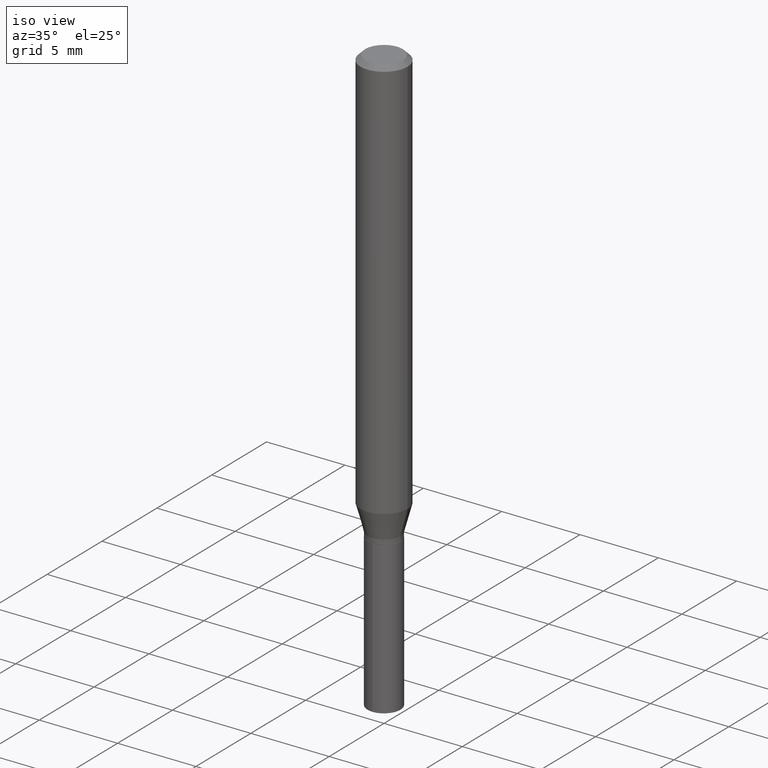
[diagram: clean part render]
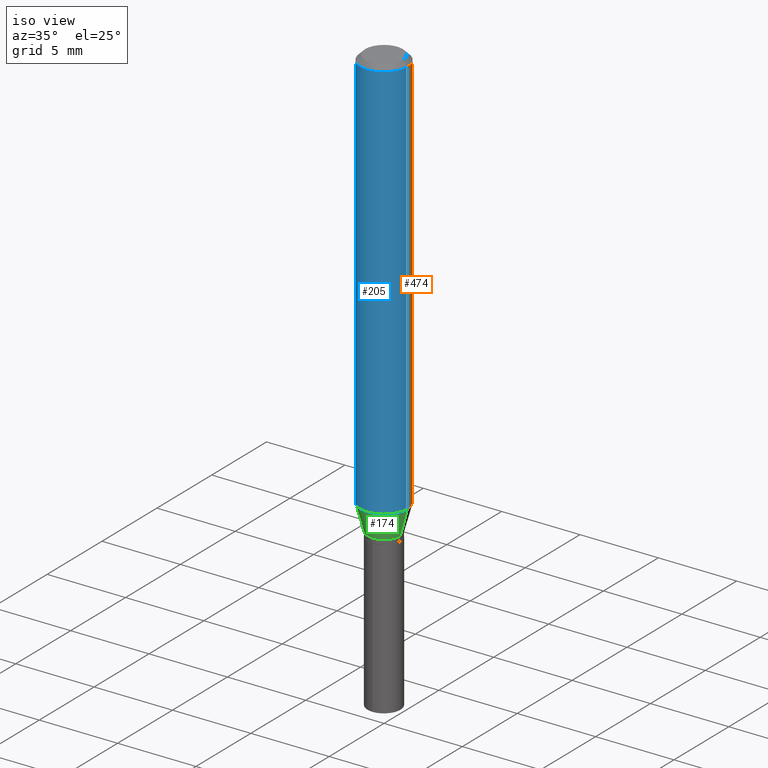
[diagram: same view with three faces highlighted in distinct colors, each labeled with its STEP entity id]
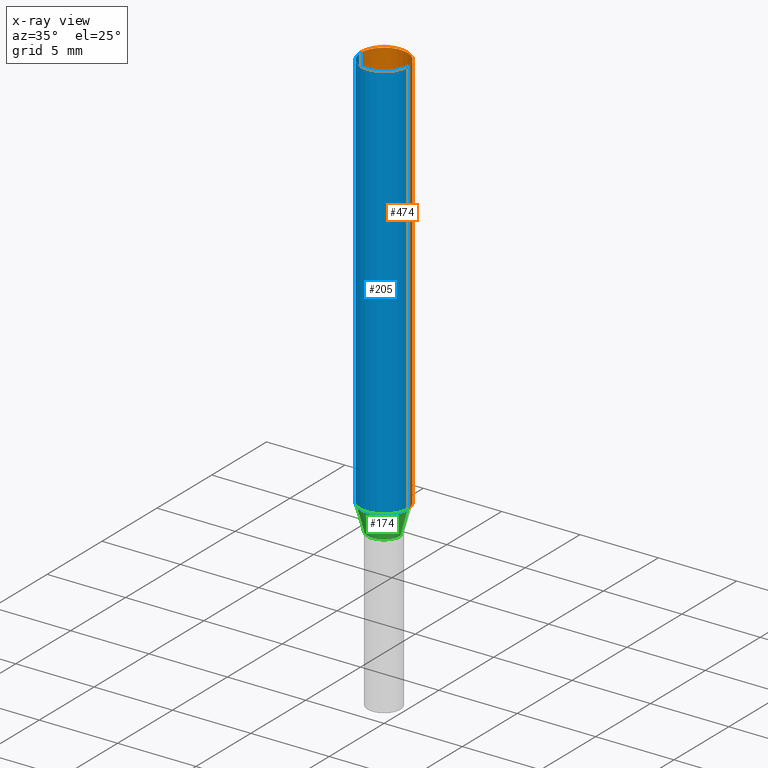
[diagram: x-ray of the same camera — body ghosted, the three highlighted faces saturated]
A machine part, iso view with three faces highlighted in distinct colors.
The next image is the same camera in x-ray (body ghosted, the three faces saturated) — at least one of them is partly hidden behind the body in this view.
Their STEP definitions:

[orange] entity #474 — the highlighted cylindrical surface (edge-blend (fillet) strip) has radius 1.4999 mm, axis along (-0, 0, 1).
#2 = AXIS2_PLACEMENT_3D ( 'NONE', #481, #444, #100 ) ;
#6 = LINE ( 'NONE', #166, #331 ) ;
#9 = EDGE_CURVE ( 'NONE', #92, #380, #118, .T. ) ;
#33 = DIRECTION ( 'NONE',  ( -2.445468806185136877E-29, 3.491481338843145188E-15, 1.000000000000000000 ) ) ;
#61 = VERTEX_POINT ( 'NONE', #276 ) ;
#72 = DIRECTION ( 'NONE',  ( 1.000000000000000000, -6.982962677686266711E-15, 4.876176775795936353E-29 ) ) ;
#73 = EDGE_CURVE ( 'NONE', #61, #380, #124, .T. ) ;
#92 = VERTEX_POINT ( 'NONE', #229 ) ;
#100 = DIRECTION ( 'NONE',  ( 1.000000000000000000, -6.982962677686265133E-15, 0.000000000000000000 ) ) ;
#116 = VERTEX_POINT ( 'NONE', #254 ) ;
#118 = LINE ( 'NONE', #158, #142 ) ;
#124 = CIRCLE ( 'NONE', #159, 0.05905000000000000526 ) ;
#137 = ORIENTED_EDGE ( 'NONE', *, *, #145, .F. ) ;
#142 = VECTOR ( 'NONE', #33, 39.37007874015748143 ) ;
#145 = EDGE_CURVE ( 'NONE', #116, #61, #6, .T. ) ;
#154 = FACE_OUTER_BOUND ( 'NONE', #227, .T. ) ;
#158 = CARTESIAN_POINT ( 'NONE',  ( -0.05905000000000006771, 4.195754854663396409E-16, -2.904631170795525045E-30 ) ) ;
#159 = AXIS2_PLACEMENT_3D ( 'NONE', #315, #344, #456 ) ;
#166 = CARTESIAN_POINT ( 'NONE',  ( 0.05905000000000006771, -4.123439461173745257E-16, 2.879382386107503723E-30 ) ) ;
#220 = CARTESIAN_POINT ( 'NONE',  ( -0.05905000000000000526, -1.374788776330977188E-15, -0.01181000000000007565 ) ) ;
#227 = EDGE_LOOP ( 'NONE', ( #460, #418, #426, #137 ) ) ;
#229 = CARTESIAN_POINT ( 'NONE',  ( -0.05905000000000013016, -3.127918643516556534E-15, -1.016042700706030422 ) ) ;
#239 = CIRCLE ( 'NONE', #2, 0.05905000000000013016 ) ;
#241 = AXIS2_PLACEMENT_3D ( 'NONE', #242, #411, #72 ) ;
#242 = CARTESIAN_POINT ( 'NONE',  ( 0.000000000000000000, 0.000000000000000000, 0.000000000000000000 ) ) ;
#254 = CARTESIAN_POINT ( 'NONE',  ( 0.05905000000000013016, -3.959838075100271736E-15, -1.016042700706030422 ) ) ;
#276 = CARTESIAN_POINT ( 'NONE',  ( 0.05905000000000000526, -4.535783407291119586E-16, -0.01181000000000007565 ) ) ;
#314 = CYLINDRICAL_SURFACE ( 'NONE', #241, 0.05905000000000006771 ) ;
#315 = CARTESIAN_POINT ( 'NONE',  ( 2.888098660104664642E-31, -4.123439461173780879E-17, -0.01181000000000007565 ) ) ;
#331 = VECTOR ( 'NONE', #428, 39.37007874015748143 ) ;
#344 = DIRECTION ( 'NONE',  ( -2.445468806185136597E-29, 3.491481338843145583E-15, 1.000000000000000000 ) ) ;
#378 = EDGE_CURVE ( 'NONE', #116, #92, #239, .T. ) ;
#380 = VERTEX_POINT ( 'NONE', #220 ) ;
#411 = DIRECTION ( 'NONE',  ( -2.445468806185136597E-29, 3.491481338843145583E-15, 1.000000000000000000 ) ) ;
#418 = ORIENTED_EDGE ( 'NONE', *, *, #9, .T. ) ;
#426 = ORIENTED_EDGE ( 'NONE', *, *, #73, .F. ) ;
#428 = DIRECTION ( 'NONE',  ( -2.445468806185136877E-29, 3.491481338843145188E-15, 1.000000000000000000 ) ) ;
#444 = DIRECTION ( 'NONE',  ( -2.445468806185136597E-29, 3.491481338843145583E-15, 1.000000000000000000 ) ) ;
#456 = DIRECTION ( 'NONE',  ( 1.000000000000000000, -6.982962677686268288E-15, 0.000000000000000000 ) ) ;
#460 = ORIENTED_EDGE ( 'NONE', *, *, #378, .T. ) ;
#474 = ADVANCED_FACE ( 'NONE', ( #154 ), #314, .T. ) ;
#481 = CARTESIAN_POINT ( 'NONE',  ( 2.484700730328698523E-29, -3.547494128982896816E-15, -1.016042700706030422 ) ) ;

[blue] entity #205 — the highlighted cylindrical surface (edge-blend (fillet) strip) has radius 1.4999 mm, axis along (-0, 0, 1).
#6 = LINE ( 'NONE', #166, #331 ) ;
#7 = ORIENTED_EDGE ( 'NONE', *, *, #375, .F. ) ;
#9 = EDGE_CURVE ( 'NONE', #92, #380, #118, .T. ) ;
#24 = CARTESIAN_POINT ( 'NONE',  ( 2.484700730328698523E-29, -3.547494128982896816E-15, -1.016042700706030422 ) ) ;
#27 = EDGE_LOOP ( 'NONE', ( #76, #347, #243, #7 ) ) ;
#33 = DIRECTION ( 'NONE',  ( -2.445468806185136877E-29, 3.491481338843145188E-15, 1.000000000000000000 ) ) ;
#43 = EDGE_CURVE ( 'NONE', #92, #116, #316, .T. ) ;
#58 = DIRECTION ( 'NONE',  ( -2.445468806185136597E-29, 3.491481338843145583E-15, 1.000000000000000000 ) ) ;
#61 = VERTEX_POINT ( 'NONE', #276 ) ;
#66 = DIRECTION ( 'NONE',  ( 1.000000000000000000, -6.982962677686268288E-15, 0.000000000000000000 ) ) ;
#70 = CIRCLE ( 'NONE', #373, 0.05905000000000000526 ) ;
#76 = ORIENTED_EDGE ( 'NONE', *, *, #9, .F. ) ;
#92 = VERTEX_POINT ( 'NONE', #229 ) ;
#116 = VERTEX_POINT ( 'NONE', #254 ) ;
#118 = LINE ( 'NONE', #158, #142 ) ;
#136 = CARTESIAN_POINT ( 'NONE',  ( 0.000000000000000000, 0.000000000000000000, 0.000000000000000000 ) ) ;
#142 = VECTOR ( 'NONE', #33, 39.37007874015748143 ) ;
#145 = EDGE_CURVE ( 'NONE', #116, #61, #6, .T. ) ;
#158 = CARTESIAN_POINT ( 'NONE',  ( -0.05905000000000006771, 4.195754854663396409E-16, -2.904631170795525045E-30 ) ) ;
#166 = CARTESIAN_POINT ( 'NONE',  ( 0.05905000000000006771, -4.123439461173745257E-16, 2.879382386107503723E-30 ) ) ;
#189 = DIRECTION ( 'NONE',  ( -2.445468806185136597E-29, 3.491481338843145583E-15, 1.000000000000000000 ) ) ;
#202 = DIRECTION ( 'NONE',  ( 1.000000000000000000, -6.982962677686265133E-15, 0.000000000000000000 ) ) ;
#205 = ADVANCED_FACE ( 'NONE', ( #258 ), #294, .T. ) ;
#220 = CARTESIAN_POINT ( 'NONE',  ( -0.05905000000000000526, -1.374788776330977188E-15, -0.01181000000000007565 ) ) ;
#229 = CARTESIAN_POINT ( 'NONE',  ( -0.05905000000000013016, -3.127918643516556534E-15, -1.016042700706030422 ) ) ;
#243 = ORIENTED_EDGE ( 'NONE', *, *, #145, .T. ) ;
#254 = CARTESIAN_POINT ( 'NONE',  ( 0.05905000000000013016, -3.959838075100271736E-15, -1.016042700706030422 ) ) ;
#258 = FACE_OUTER_BOUND ( 'NONE', #27, .T. ) ;
#276 = CARTESIAN_POINT ( 'NONE',  ( 0.05905000000000000526, -4.535783407291119586E-16, -0.01181000000000007565 ) ) ;
#294 = CYLINDRICAL_SURFACE ( 'NONE', #308, 0.05905000000000006771 ) ;
#308 = AXIS2_PLACEMENT_3D ( 'NONE', #136, #431, #358 ) ;
#316 = CIRCLE ( 'NONE', #433, 0.05905000000000013016 ) ;
#331 = VECTOR ( 'NONE', #428, 39.37007874015748143 ) ;
#347 = ORIENTED_EDGE ( 'NONE', *, *, #43, .T. ) ;
#358 = DIRECTION ( 'NONE',  ( 1.000000000000000000, -6.982962677686266711E-15, 4.876176775795936353E-29 ) ) ;
#373 = AXIS2_PLACEMENT_3D ( 'NONE', #406, #58, #66 ) ;
#375 = EDGE_CURVE ( 'NONE', #380, #61, #70, .T. ) ;
#380 = VERTEX_POINT ( 'NONE', #220 ) ;
#406 = CARTESIAN_POINT ( 'NONE',  ( 2.888098660104664642E-31, -4.123439461173780879E-17, -0.01181000000000007565 ) ) ;
#428 = DIRECTION ( 'NONE',  ( -2.445468806185136877E-29, 3.491481338843145188E-15, 1.000000000000000000 ) ) ;
#431 = DIRECTION ( 'NONE',  ( -2.445468806185136597E-29, 3.491481338843145583E-15, 1.000000000000000000 ) ) ;
#433 = AXIS2_PLACEMENT_3D ( 'NONE', #24, #189, #202 ) ;

[green] entity #174 — the highlighted conical surface has half-angle 15 deg.
#21 = DIRECTION ( 'NONE',  ( -0.2588190451025214611, 5.211531920934551042E-15, 0.9659258262890682012 ) ) ;
#24 = CARTESIAN_POINT ( 'NONE',  ( 2.484700730328698523E-29, -3.547494128982896816E-15, -1.016042700706030422 ) ) ;
#43 = EDGE_CURVE ( 'NONE', #92, #116, #316, .T. ) ;
#49 = CARTESIAN_POINT ( 'NONE',  ( 2.646241795172936147E-29, -3.778131956762167118E-15, -1.082099999999999840 ) ) ;
#54 = VECTOR ( 'NONE', #21, 39.37007874015747433 ) ;
#68 = LINE ( 'NONE', #475, #54 ) ;
#79 = VECTOR ( 'NONE', #392, 39.37007874015747433 ) ;
#82 = EDGE_LOOP ( 'NONE', ( #370, #212, #321, #108 ) ) ;
#86 = FACE_OUTER_BOUND ( 'NONE', #82, .T. ) ;
#92 = VERTEX_POINT ( 'NONE', #229 ) ;
#98 = CARTESIAN_POINT ( 'NONE',  ( 2.646241795172936147E-29, -3.778131956762167118E-15, -1.082099999999999840 ) ) ;
#108 = ORIENTED_EDGE ( 'NONE', *, *, #43, .F. ) ;
#116 = VERTEX_POINT ( 'NONE', #254 ) ;
#132 = DIRECTION ( 'NONE',  ( 1.000000000000000000, -6.982962677686273021E-15, 0.000000000000000000 ) ) ;
#147 = EDGE_CURVE ( 'NONE', #383, #116, #247, .T. ) ;
#165 = EDGE_CURVE ( 'NONE', #267, #383, #463, .T. ) ;
#174 = ADVANCED_FACE ( 'NONE', ( #86 ), #345, .T. ) ;
#178 = CARTESIAN_POINT ( 'NONE',  ( 0.04134999999999999787, -4.066877463484494853E-15, -1.082099999999999840 ) ) ;
#189 = DIRECTION ( 'NONE',  ( -2.445468806185136597E-29, 3.491481338843145583E-15, 1.000000000000000000 ) ) ;
#202 = DIRECTION ( 'NONE',  ( 1.000000000000000000, -6.982962677686265133E-15, 0.000000000000000000 ) ) ;
#212 = ORIENTED_EDGE ( 'NONE', *, *, #165, .T. ) ;
#229 = CARTESIAN_POINT ( 'NONE',  ( -0.05905000000000013016, -3.127918643516556534E-15, -1.016042700706030422 ) ) ;
#231 = AXIS2_PLACEMENT_3D ( 'NONE', #98, #354, #256 ) ;
#247 = LINE ( 'NONE', #178, #79 ) ;
#254 = CARTESIAN_POINT ( 'NONE',  ( 0.05905000000000013016, -3.959838075100271736E-15, -1.016042700706030422 ) ) ;
#256 = DIRECTION ( 'NONE',  ( 1.000000000000000000, -6.982962677686273021E-15, 0.000000000000000000 ) ) ;
#267 = VERTEX_POINT ( 'NONE', #334 ) ;
#316 = CIRCLE ( 'NONE', #433, 0.05905000000000013016 ) ;
#321 = ORIENTED_EDGE ( 'NONE', *, *, #147, .T. ) ;
#334 = CARTESIAN_POINT ( 'NONE',  ( -0.04134999999999999787, -3.505096849491482388E-15, -1.082099999999999840 ) ) ;
#335 = EDGE_CURVE ( 'NONE', #267, #92, #68, .T. ) ;
#345 = CONICAL_SURFACE ( 'NONE', #231, 0.04134999999999999787, 0.2617993877991501295 ) ;
#354 = DIRECTION ( 'NONE',  ( -2.445468806185136597E-29, 3.491481338843145583E-15, 1.000000000000000000 ) ) ;
#370 = ORIENTED_EDGE ( 'NONE', *, *, #335, .F. ) ;
#383 = VERTEX_POINT ( 'NONE', #486 ) ;
#392 = DIRECTION ( 'NONE',  ( 0.2588190451025214611, 1.565188264969621573E-15, 0.9659258262890682012 ) ) ;
#433 = AXIS2_PLACEMENT_3D ( 'NONE', #24, #189, #202 ) ;
#446 = AXIS2_PLACEMENT_3D ( 'NONE', #49, #459, #132 ) ;
#459 = DIRECTION ( 'NONE',  ( -2.445468806185136597E-29, 3.491481338843145583E-15, 1.000000000000000000 ) ) ;
#463 = CIRCLE ( 'NONE', #446, 0.04134999999999999787 ) ;
#475 = CARTESIAN_POINT ( 'NONE',  ( -0.04134999999999999787, -3.484322535525365707E-15, -1.082099999999999840 ) ) ;
#486 = CARTESIAN_POINT ( 'NONE',  ( 0.04134999999999999787, -4.066877463484494853E-15, -1.082099999999999840 ) ) ;